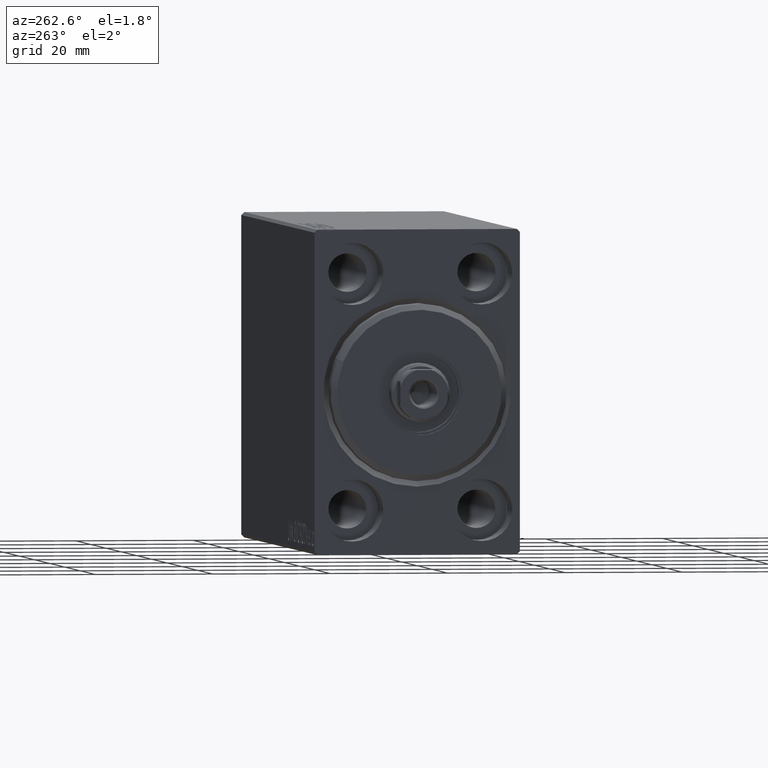
[diagram: clean part render]
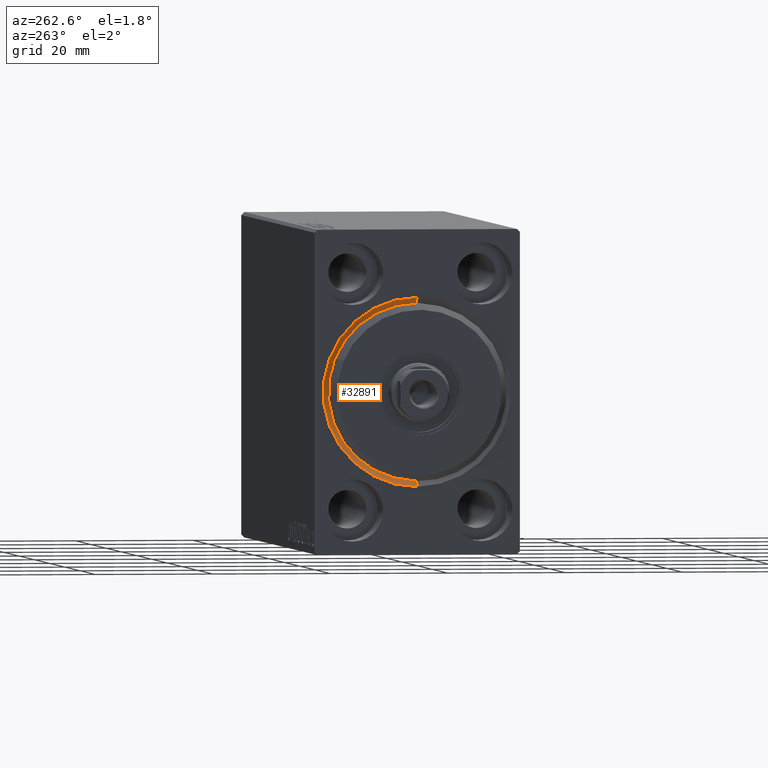
[diagram: same view with one face highlighted and labeled with its STEP entity id]
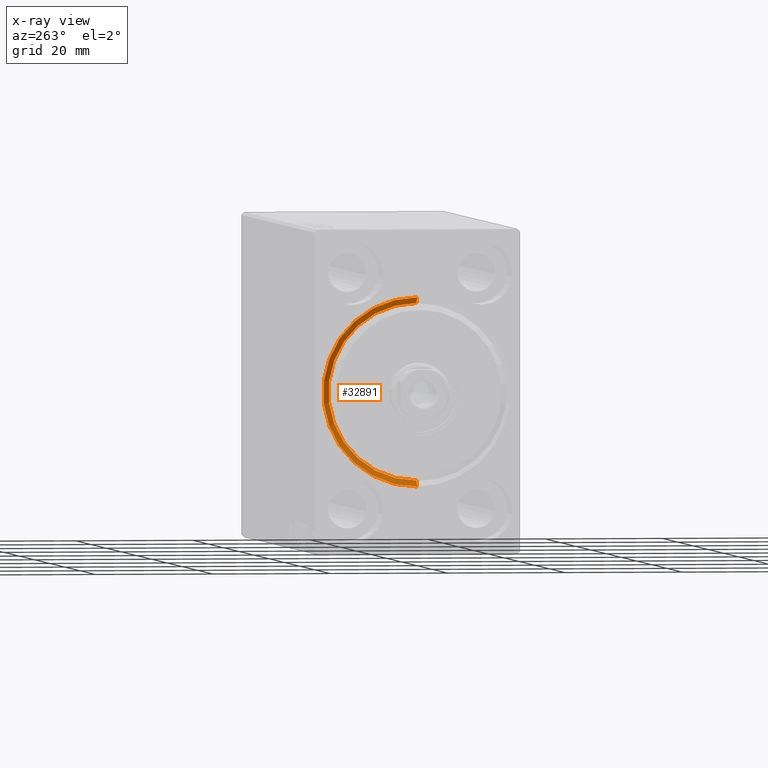
[diagram: x-ray of the same camera — body ghosted, the highlighted face saturated]
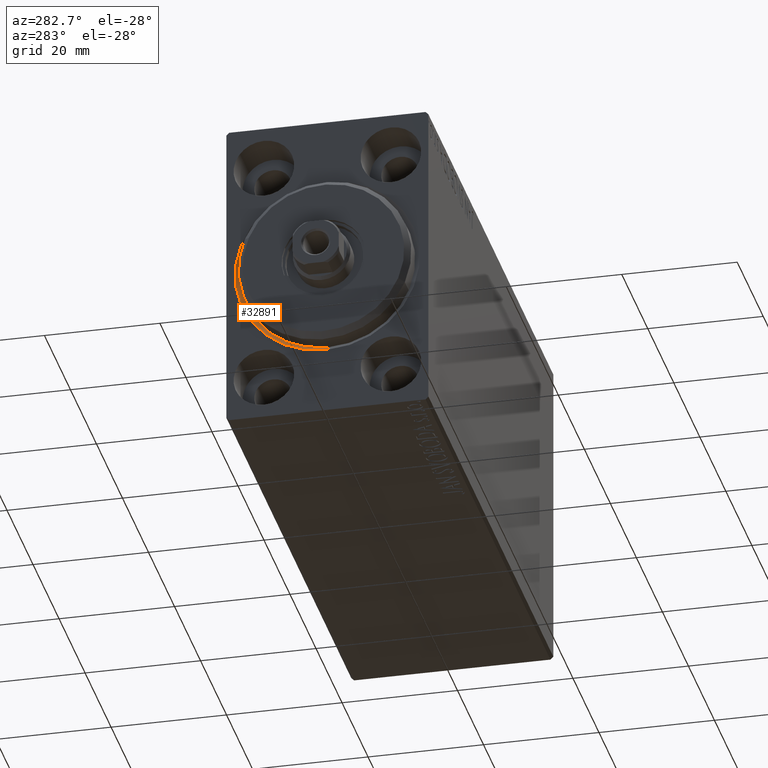
[diagram: same view with one face highlighted and labeled with its STEP entity id]
A machine part, auxiliary view. The second image highlights one B-rep face of the part: STEP entity #32891.
The next image is the same camera in x-ray: the body ghosted, the highlighted face saturated — about 0% of this face is hidden behind the body in this view.
A second angle (auxiliary view) of the same face is appended — the face is thin or edge-on in the first view.
In plain terms, the highlighted conical surface has half-angle 45 deg.
Its self-contained STEP definition (entity closure, byte-faithful):
#757 = CIRCLE ( 'NONE', #11404, 16.00000000000002842 ) ;
#1677 = DIRECTION ( 'NONE',  ( 0.000000000000000000, 0.000000000000000000, 1.000000000000000000 ) ) ;
#2312 = DIRECTION ( 'NONE',  ( -1.000000000000000000, 0.000000000000000000, 0.000000000000000000 ) ) ;
#4634 = CARTESIAN_POINT ( 'NONE',  ( 1.000000000000026867, 0.000000000000000000, 15.00000000000000000 ) ) ;
#10174 = DIRECTION ( 'NONE',  ( -1.000000000000000000, 0.000000000000000000, 0.000000000000000000 ) ) ;
#10391 = CARTESIAN_POINT ( 'NONE',  ( 1.000000000000026867, 0.000000000000000000, 0.000000000000000000 ) ) ;
#11130 = LINE ( 'NONE', #25330, #39136 ) ;
#11404 = AXIS2_PLACEMENT_3D ( 'NONE', #18128, #23907, #34780 ) ;
#11564 = CARTESIAN_POINT ( 'NONE',  ( 0.000000000000000000, 1.959434878635768681E-15, -16.00000000000002842 ) ) ;
#14844 = LINE ( 'NONE', #4634, #26143 ) ;
#16720 = EDGE_CURVE ( 'NONE', #37970, #25668, #14844, .T. ) ;
#18128 = CARTESIAN_POINT ( 'NONE',  ( 0.000000000000000000, 0.000000000000000000, 0.000000000000000000 ) ) ;
#18557 = CARTESIAN_POINT ( 'NONE',  ( 1.000000000000026867, 0.000000000000000000, 0.000000000000000000 ) ) ;
#20278 = EDGE_CURVE ( 'NONE', #42412, #25668, #757, .T. ) ;
#21997 = DIRECTION ( 'NONE',  ( -0.7071067811865469066, 8.659560562354942719E-17, -0.7071067811865482389 ) ) ;
#23504 = CARTESIAN_POINT ( 'NONE',  ( 1.000000000000026867, 0.000000000000000000, 15.00000000000000000 ) ) ;
#23729 = DIRECTION ( 'NONE',  ( 0.000000000000000000, 0.000000000000000000, -1.000000000000000000 ) ) ;
#23907 = DIRECTION ( 'NONE',  ( 1.000000000000000000, 0.000000000000000000, 0.000000000000000000 ) ) ;
#24878 = CONICAL_SURFACE ( 'NONE', #36170, 15.00000000000000000, 0.7853981633974491672 ) ;
#25019 = FACE_OUTER_BOUND ( 'NONE', #29991, .T. ) ;
#25330 = CARTESIAN_POINT ( 'NONE',  ( 1.000000000000026867, 1.836970198721029589E-15, -15.00000000000000000 ) ) ;
#25668 = VERTEX_POINT ( 'NONE', #41376 ) ;
#26143 = VECTOR ( 'NONE', #39226, 999.9999999999998863 ) ;
#28290 = CIRCLE ( 'NONE', #36768, 15.00000000000000000 ) ;
#28409 = EDGE_CURVE ( 'NONE', #37970, #33931, #28290, .T. ) ;
#29991 = EDGE_LOOP ( 'NONE', ( #36504, #32124, #36419, #41635 ) ) ;
#32124 = ORIENTED_EDGE ( 'NONE', *, *, #28409, .F. ) ;
#32891 = ADVANCED_FACE ( 'NONE', ( #25019 ), #24878, .F. ) ;
#33931 = VERTEX_POINT ( 'NONE', #42392 ) ;
#34780 = DIRECTION ( 'NONE',  ( 0.000000000000000000, 0.000000000000000000, -1.000000000000000000 ) ) ;
#36170 = AXIS2_PLACEMENT_3D ( 'NONE', #18557, #2312, #1677 ) ;
#36419 = ORIENTED_EDGE ( 'NONE', *, *, #16720, .T. ) ;
#36504 = ORIENTED_EDGE ( 'NONE', *, *, #38231, .F. ) ;
#36768 = AXIS2_PLACEMENT_3D ( 'NONE', #10391, #10174, #23729 ) ;
#37970 = VERTEX_POINT ( 'NONE', #23504 ) ;
#38231 = EDGE_CURVE ( 'NONE', #33931, #42412, #11130, .T. ) ;
#39136 = VECTOR ( 'NONE', #21997, 999.9999999999998863 ) ;
#39226 = DIRECTION ( 'NONE',  ( -0.7071067811865469066, 0.000000000000000000, 0.7071067811865482389 ) ) ;
#41376 = CARTESIAN_POINT ( 'NONE',  ( 0.000000000000000000, 0.000000000000000000, 16.00000000000002842 ) ) ;
#41635 = ORIENTED_EDGE ( 'NONE', *, *, #20278, .F. ) ;
#42392 = CARTESIAN_POINT ( 'NONE',  ( 1.000000000000026867, 1.836970198721029589E-15, -15.00000000000000000 ) ) ;
#42412 = VERTEX_POINT ( 'NONE', #11564 ) ;